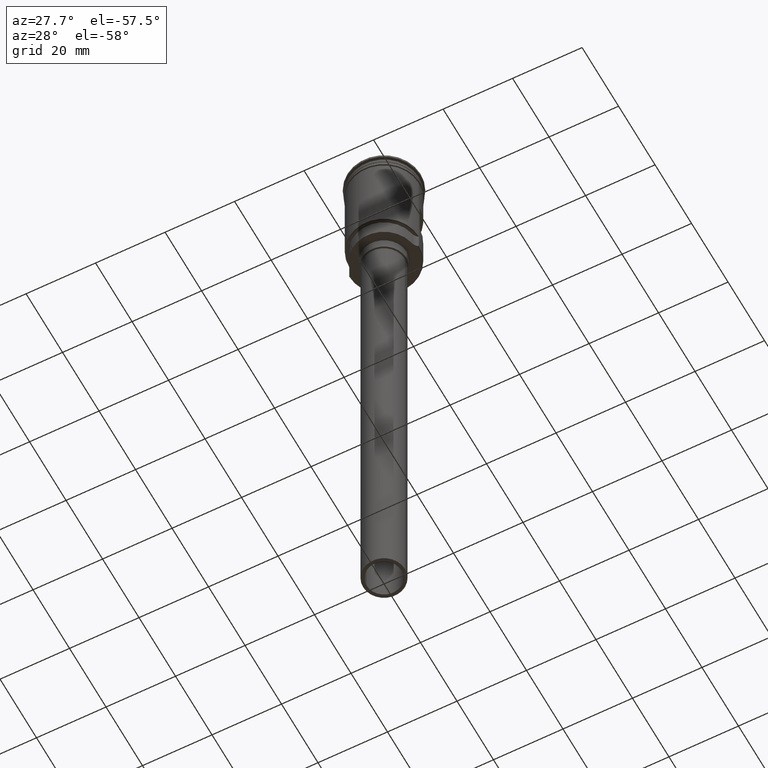
[diagram: clean part render]
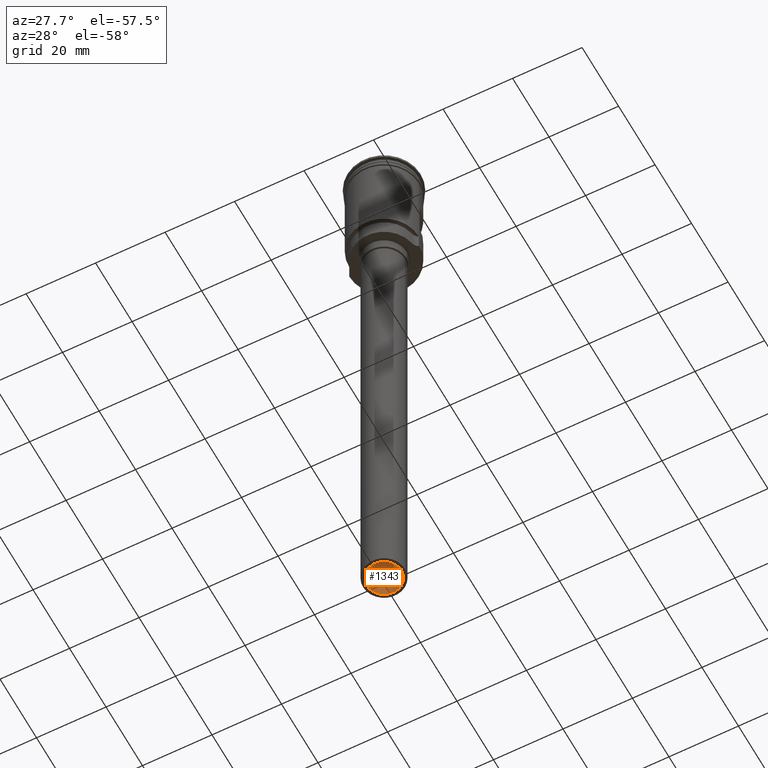
[diagram: same view with one face highlighted and labeled with its STEP entity id]
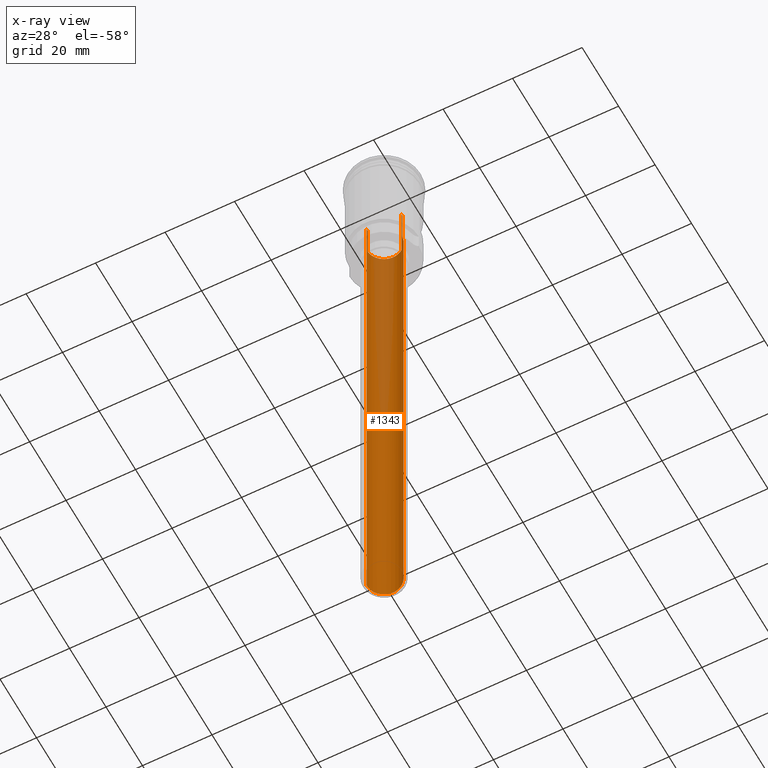
[diagram: x-ray of the same camera — body ghosted, the highlighted face saturated]
A machine part, auxiliary view. The second image highlights one B-rep face of the part: STEP entity #1343.
The next image is the same camera in x-ray: the body ghosted, the highlighted face saturated — about 20% of this face is hidden behind the body in this view.
In plain terms, the highlighted cylindrical surface (edge-blend (fillet) strip) has radius 5 mm, axis along (-0, -0, -1).
Its self-contained STEP definition (entity closure, byte-faithful):
#11 = LINE ( 'NONE', #769, #322 ) ;
#48 = CARTESIAN_POINT ( 'NONE',  ( 0.000000000000000000, 0.000000000000000000, -0.8578643762691129382 ) ) ;
#68 = EDGE_CURVE ( 'NONE', #1232, #966, #11, .T. ) ;
#91 = DIRECTION ( 'NONE',  ( -0.000000000000000000, 1.845450506358306558E-16, -1.000000000000000000 ) ) ;
#117 = EDGE_CURVE ( 'NONE', #343, #1232, #1300, .T. ) ;
#118 = VERTEX_POINT ( 'NONE', #293 ) ;
#193 = DIRECTION ( 'NONE',  ( -0.000000000000000000, 1.845450506358306558E-16, -1.000000000000000000 ) ) ;
#207 = ORIENTED_EDGE ( 'NONE', *, *, #438, .F. ) ;
#266 = ORIENTED_EDGE ( 'NONE', *, *, #487, .T. ) ;
#293 = CARTESIAN_POINT ( 'NONE',  ( 5.000000000000000888, 6.123233995736766282E-16, -15.00000000000000000 ) ) ;
#312 = CARTESIAN_POINT ( 'NONE',  ( 5.000000000000000888, 6.123233995736766282E-16, -184.0000000000000000 ) ) ;
#322 = VECTOR ( 'NONE', #762, 1000.000000000000000 ) ;
#327 = CARTESIAN_POINT ( 'NONE',  ( 4.963869458396339418, 0.6000000000000000888, -15.00000000000000000 ) ) ;
#343 = VERTEX_POINT ( 'NONE', #996 ) ;
#347 = EDGE_CURVE ( 'NONE', #118, #917, #638, .T. ) ;
#351 = CIRCLE ( 'NONE', #1526, 5.000000000000000888 ) ;
#378 = CIRCLE ( 'NONE', #431, 5.000000000000000888 ) ;
#418 = DIRECTION ( 'NONE',  ( -1.000000000000000000, 0.000000000000000000, 0.000000000000000000 ) ) ;
#431 = AXIS2_PLACEMENT_3D ( 'NONE', #1395, #1047, #778 ) ;
#438 = EDGE_CURVE ( 'NONE', #1514, #343, #1541, .T. ) ;
#487 = EDGE_CURVE ( 'NONE', #827, #535, #1432, .T. ) ;
#496 = EDGE_CURVE ( 'NONE', #966, #118, #351, .T. ) ;
#535 = VERTEX_POINT ( 'NONE', #967 ) ;
#571 = ORIENTED_EDGE ( 'NONE', *, *, #68, .F. ) ;
#580 = DIRECTION ( 'NONE',  ( 0.000000000000000000, -1.000000000000000000, -3.469446951953613696E-16 ) ) ;
#583 = CARTESIAN_POINT ( 'NONE',  ( 0.000000000000000000, 0.000000000000000000, -15.00000000000000000 ) ) ;
#597 = CARTESIAN_POINT ( 'NONE',  ( -5.000000000000000888, 0.000000000000000000, -0.8578643762691129382 ) ) ;
#598 = CYLINDRICAL_SURFACE ( 'NONE', #906, 5.000000000000000888 ) ;
#638 = LINE ( 'NONE', #1344, #1102 ) ;
#641 = AXIS2_PLACEMENT_3D ( 'NONE', #1153, #1421, #418 ) ;
#661 = EDGE_CURVE ( 'NONE', #535, #917, #378, .T. ) ;
#703 = CARTESIAN_POINT ( 'NONE',  ( 0.000000000000000000, 0.000000000000000000, -15.00000000000000000 ) ) ;
#756 = EDGE_LOOP ( 'NONE', ( #1269, #1223, #571, #1373, #207, #1461, #266, #1200 ) ) ;
#762 = DIRECTION ( 'NONE',  ( 0.000000000000000000, 0.000000000000000000, 1.000000000000000000 ) ) ;
#769 = CARTESIAN_POINT ( 'NONE',  ( 4.963869458396342971, 0.5999999999999998668, -0.8578643762691129382 ) ) ;
#778 = DIRECTION ( 'NONE',  ( -1.000000000000000000, 0.000000000000000000, 0.000000000000000000 ) ) ;
#801 = VECTOR ( 'NONE', #922, 1000.000000000000000 ) ;
#827 = VERTEX_POINT ( 'NONE', #1133 ) ;
#864 = DIRECTION ( 'NONE',  ( -0.000000000000000000, -0.000000000000000000, -1.000000000000000000 ) ) ;
#906 = AXIS2_PLACEMENT_3D ( 'NONE', #48, #1143, #1358 ) ;
#917 = VERTEX_POINT ( 'NONE', #312 ) ;
#919 = EDGE_CURVE ( 'NONE', #827, #1514, #949, .T. ) ;
#922 = DIRECTION ( 'NONE',  ( -0.000000000000000000, -0.000000000000000000, -1.000000000000000000 ) ) ;
#930 = AXIS2_PLACEMENT_3D ( 'NONE', #583, #193, #1180 ) ;
#949 = CIRCLE ( 'NONE', #930, 5.000000000000000888 ) ;
#966 = VERTEX_POINT ( 'NONE', #327 ) ;
#967 = CARTESIAN_POINT ( 'NONE',  ( -5.000000000000000888, 0.000000000000000000, -184.0000000000000000 ) ) ;
#996 = CARTESIAN_POINT ( 'NONE',  ( -4.963869458396342971, 0.5999999999999998668, -25.00000000000000000 ) ) ;
#1047 = DIRECTION ( 'NONE',  ( 0.000000000000000000, 0.000000000000000000, -1.000000000000000000 ) ) ;
#1102 = VECTOR ( 'NONE', #864, 1000.000000000000000 ) ;
#1133 = CARTESIAN_POINT ( 'NONE',  ( -5.000000000000000888, 0.000000000000000000, -15.00000000000000000 ) ) ;
#1143 = DIRECTION ( 'NONE',  ( -0.000000000000000000, -0.000000000000000000, -1.000000000000000000 ) ) ;
#1153 = CARTESIAN_POINT ( 'NONE',  ( 0.000000000000000000, 0.000000000000000000, -25.00000000000000000 ) ) ;
#1180 = DIRECTION ( 'NONE',  ( 0.000000000000000000, -1.000000000000000000, -3.469446951953613696E-16 ) ) ;
#1193 = DIRECTION ( 'NONE',  ( -0.000000000000000000, -0.000000000000000000, -1.000000000000000000 ) ) ;
#1200 = ORIENTED_EDGE ( 'NONE', *, *, #661, .T. ) ;
#1223 = ORIENTED_EDGE ( 'NONE', *, *, #496, .F. ) ;
#1232 = VERTEX_POINT ( 'NONE', #1298 ) ;
#1256 = CARTESIAN_POINT ( 'NONE',  ( -4.963869458396343859, 0.5999999999999999778, -15.00000000000000000 ) ) ;
#1269 = ORIENTED_EDGE ( 'NONE', *, *, #347, .F. ) ;
#1298 = CARTESIAN_POINT ( 'NONE',  ( 4.963869458396342971, 0.5999999999999998668, -25.00000000000000000 ) ) ;
#1300 = CIRCLE ( 'NONE', #641, 5.000000000000000888 ) ;
#1332 = VECTOR ( 'NONE', #1193, 1000.000000000000000 ) ;
#1342 = FACE_OUTER_BOUND ( 'NONE', #756, .T. ) ;
#1343 = ADVANCED_FACE ( 'NONE', ( #1342 ), #598, .F. ) ;
#1344 = CARTESIAN_POINT ( 'NONE',  ( 5.000000000000000888, 6.123233995736766282E-16, -0.8578643762691129382 ) ) ;
#1358 = DIRECTION ( 'NONE',  ( -1.000000000000000000, 0.000000000000000000, 0.000000000000000000 ) ) ;
#1373 = ORIENTED_EDGE ( 'NONE', *, *, #117, .F. ) ;
#1395 = CARTESIAN_POINT ( 'NONE',  ( 0.000000000000000000, 0.000000000000000000, -184.0000000000000000 ) ) ;
#1420 = CARTESIAN_POINT ( 'NONE',  ( -4.963869458396342971, 0.5999999999999998668, -0.8578643762691129382 ) ) ;
#1421 = DIRECTION ( 'NONE',  ( -0.000000000000000000, -0.000000000000000000, -1.000000000000000000 ) ) ;
#1432 = LINE ( 'NONE', #597, #1332 ) ;
#1461 = ORIENTED_EDGE ( 'NONE', *, *, #919, .F. ) ;
#1514 = VERTEX_POINT ( 'NONE', #1256 ) ;
#1526 = AXIS2_PLACEMENT_3D ( 'NONE', #703, #91, #580 ) ;
#1541 = LINE ( 'NONE', #1420, #801 ) ;